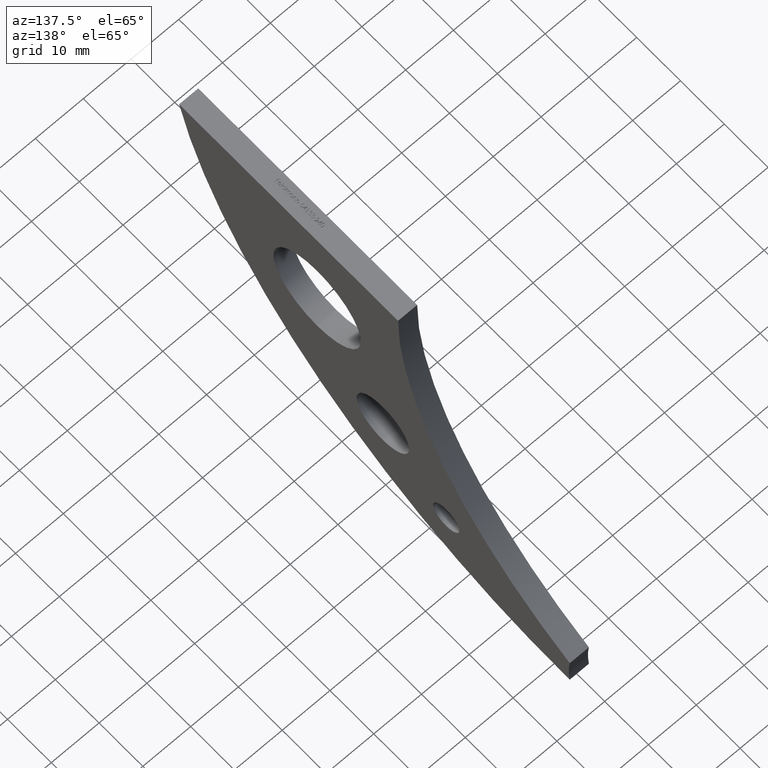
[diagram: clean part render]
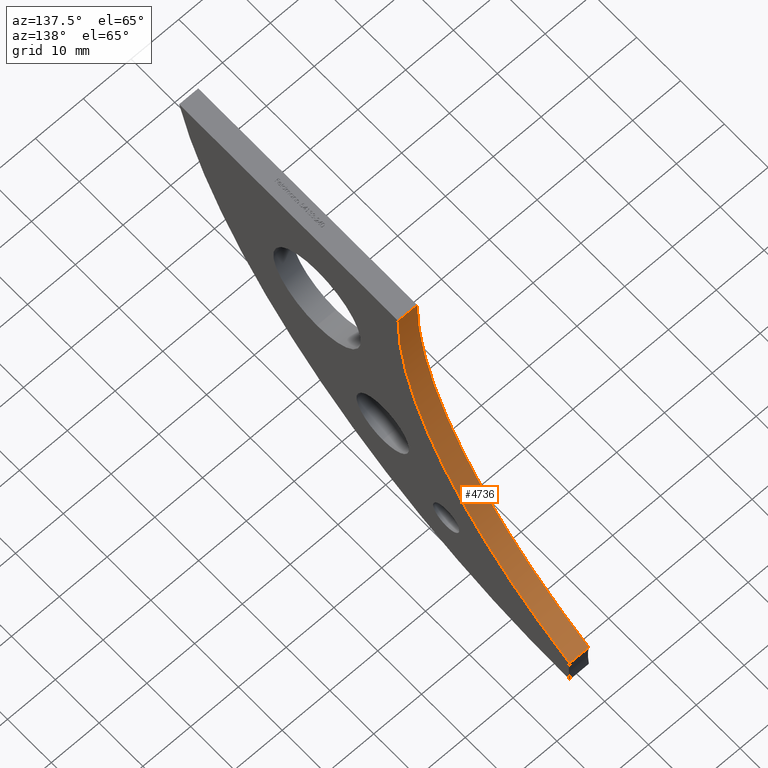
[diagram: same view with one face highlighted and labeled with its STEP entity id]
A machine part, auxiliary view. The second image highlights one B-rep face of the part: STEP entity #4736.
In plain terms, the highlighted cylindrical surface (partial cylindrical patch) has radius 70 mm, axis along (-1, -0, -0).
Its self-contained STEP definition (entity closure, byte-faithful):
#232 = CARTESIAN_POINT ( 'NONE',  ( 2.000000000000000000, 25.00000000000000000, 9.184854703111209120E-15 ) ) ;
#328 = DIRECTION ( 'NONE',  ( -1.000000000000000000, -0.000000000000000000, -0.000000000000000000 ) ) ;
#362 = AXIS2_PLACEMENT_3D ( 'NONE', #1822, #328, #12246 ) ;
#1440 = DIRECTION ( 'NONE',  ( -1.000000000000000000, -0.000000000000000000, -0.000000000000000000 ) ) ;
#1822 = CARTESIAN_POINT ( 'NONE',  ( 2.000000000000000000, 94.99987258339398011, -0.1335601310456652202 ) ) ;
#2027 = DIRECTION ( 'NONE',  ( -1.000000000000000000, -0.000000000000000000, -0.000000000000000000 ) ) ;
#2309 = CARTESIAN_POINT ( 'NONE',  ( -2.000000000000000000, 94.99987258339398011, -0.1335601310456652202 ) ) ;
#2650 = ORIENTED_EDGE ( 'NONE', *, *, #7709, .T. ) ;
#3033 = DIRECTION ( 'NONE',  ( -1.000000000000000000, -0.000000000000000000, -0.000000000000000000 ) ) ;
#3214 = ORIENTED_EDGE ( 'NONE', *, *, #6295, .T. ) ;
#3419 = DIRECTION ( 'NONE',  ( -1.000000000000000000, -0.000000000000000000, -0.000000000000000000 ) ) ;
#4288 = ORIENTED_EDGE ( 'NONE', *, *, #9266, .F. ) ;
#4486 = FACE_OUTER_BOUND ( 'NONE', #12577, .T. ) ;
#4525 = AXIS2_PLACEMENT_3D ( 'NONE', #2309, #1440, #9378 ) ;
#4612 = CIRCLE ( 'NONE', #8361, 69.99999999999998579 ) ;
#4736 = ADVANCED_FACE ( 'NONE', ( #4486 ), #6170, .F. ) ;
#5072 = ORIENTED_EDGE ( 'NONE', *, *, #7576, .F. ) ;
#5111 = CARTESIAN_POINT ( 'NONE',  ( -2.000000000000000000, 25.00000000000000000, 9.184854703111209120E-15 ) ) ;
#5218 = VERTEX_POINT ( 'NONE', #232 ) ;
#5624 = LINE ( 'NONE', #8828, #7957 ) ;
#6170 = CYLINDRICAL_SURFACE ( 'NONE', #362, 69.99999999999998579 ) ;
#6267 = VERTEX_POINT ( 'NONE', #5111 ) ;
#6295 = EDGE_CURVE ( 'NONE', #10453, #6267, #8723, .T. ) ;
#7082 = CARTESIAN_POINT ( 'NONE',  ( 2.000000000000000000, 25.00000000000000000, 9.184854703111209120E-15 ) ) ;
#7576 = EDGE_CURVE ( 'NONE', #5218, #6267, #9211, .T. ) ;
#7709 = EDGE_CURVE ( 'NONE', #10383, #10453, #5624, .T. ) ;
#7957 = VECTOR ( 'NONE', #2027, 1000.000000000000000 ) ;
#8249 = CARTESIAN_POINT ( 'NONE',  ( 2.000000000000000000, 64.21333756882718546, -63.00000000000000000 ) ) ;
#8265 = VECTOR ( 'NONE', #3033, 1000.000000000000000 ) ;
#8361 = AXIS2_PLACEMENT_3D ( 'NONE', #11365, #3419, #9525 ) ;
#8641 = CARTESIAN_POINT ( 'NONE',  ( -2.000000000000000000, 64.21333756882718546, -63.00000000000000000 ) ) ;
#8723 = CIRCLE ( 'NONE', #4525, 69.99999999999998579 ) ;
#8828 = CARTESIAN_POINT ( 'NONE',  ( 2.000000000000000000, 64.21333756882718546, -63.00000000000000000 ) ) ;
#9211 = LINE ( 'NONE', #7082, #8265 ) ;
#9266 = EDGE_CURVE ( 'NONE', #10383, #5218, #4612, .T. ) ;
#9378 = DIRECTION ( 'NONE',  ( 0.000000000000000000, 0.000000000000000000, -1.000000000000000000 ) ) ;
#9525 = DIRECTION ( 'NONE',  ( 0.000000000000000000, 0.000000000000000000, -1.000000000000000000 ) ) ;
#10383 = VERTEX_POINT ( 'NONE', #8249 ) ;
#10453 = VERTEX_POINT ( 'NONE', #8641 ) ;
#11365 = CARTESIAN_POINT ( 'NONE',  ( 2.000000000000000000, 94.99987258339398011, -0.1335601310456652202 ) ) ;
#12246 = DIRECTION ( 'NONE',  ( 0.000000000000000000, 0.000000000000000000, 1.000000000000000000 ) ) ;
#12577 = EDGE_LOOP ( 'NONE', ( #3214, #5072, #4288, #2650 ) ) ;